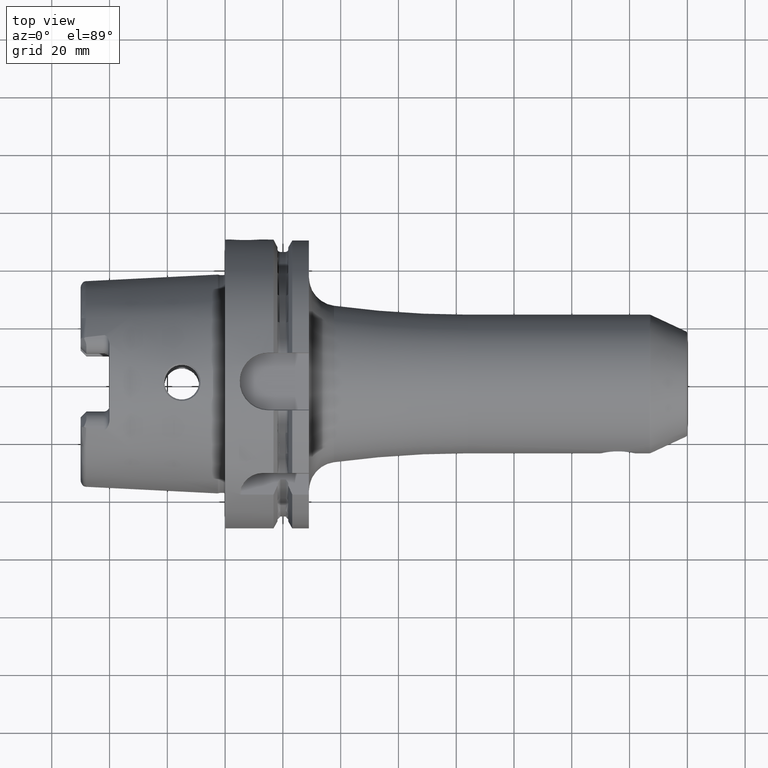
[diagram: clean part render]
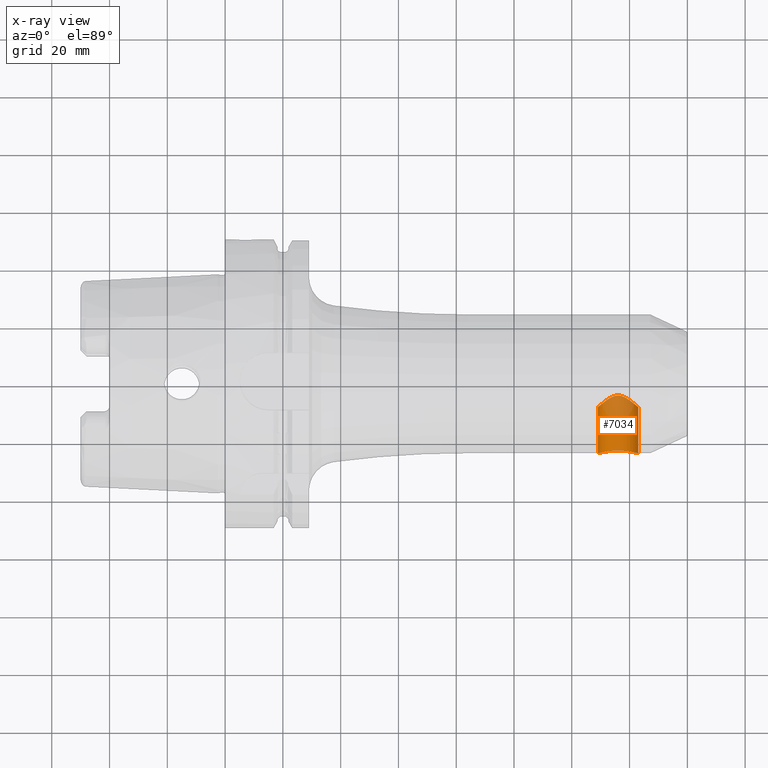
[diagram: x-ray — body ghosted, one internal face saturated and labeled with its STEP entity id]
A machine part, top view, then the same camera in x-ray: the body is ghosted and one INTERNAL B-rep face — a face not visible from any outside direction — is saturated and labeled: STEP entity #7034.
In plain terms, the highlighted cylindrical surface (edge-blend (fillet) strip) has radius 7 mm, axis along (0, -1, 0).
Its self-contained STEP definition (entity closure, byte-faithful):
#6871=CARTESIAN_POINT('',(1.43E2,-2.400001298831E1,0.E0));
#6872=CARTESIAN_POINT('',(1.43E2,-2.400001298831E1,-2.599869765732E-1));
#6873=CARTESIAN_POINT('',(1.429709704847E2,-2.399150338038E1,
-7.786805180084E-1));
#6874=CARTESIAN_POINT('',(1.428425598918E2,-2.395437764671E1,
-1.542163149351E0));
#6875=CARTESIAN_POINT('',(1.426313766120E2,-2.389468416868E1,
-2.285604773974E0));
#6876=CARTESIAN_POINT('',(1.423390125809E2,-2.381489618596E1,
-3.002926058963E0));
#6877=CARTESIAN_POINT('',(1.419666499466E2,-2.371809353725E1,
-3.688464479932E0));
#6878=CARTESIAN_POINT('',(1.415133943394E2,-2.360766084711E1,
-4.337390816795E0));
#6879=CARTESIAN_POINT('',(1.409872896573E2,-2.348987425063E1,
-4.933183700281E0));
#6880=CARTESIAN_POINT('',(1.404003070403E2,-2.337180201565E1,
-5.463069131336E0));
#6881=CARTESIAN_POINT('',(1.397558588571E2,-2.325852722453E1,
-5.924994029402E0));
#6882=CARTESIAN_POINT('',(1.390547520956E2,-2.315512490163E1,
-6.315360607712E0));
#6883=CARTESIAN_POINT('',(1.383149610578E2,-2.306886922764E1,
-6.622057041348E0));
#6884=CARTESIAN_POINT('',(1.375563729062E2,-2.300495643593E1,
-6.839774007252E0));
#6885=CARTESIAN_POINT('',(1.367840238527E2,-2.296544608447E1,
-6.970698381610E0));
#6886=CARTESIAN_POINT('',(1.359968920439E2,-2.295194482650E1,
-7.014824567475E0));
#6887=CARTESIAN_POINT('',(1.352097565688E2,-2.296565927131E1,
-6.969999207121E0));
#6888=CARTESIAN_POINT('',(1.344373993894E2,-2.300537863635E1,
-6.838360540201E0));
#6889=CARTESIAN_POINT('',(1.336788181798E2,-2.306949504708E1,
-6.619887542042E0));
#6890=CARTESIAN_POINT('',(1.329391557615E2,-2.315593202873E1,
-6.312415406880E0));
#6891=CARTESIAN_POINT('',(1.322384021162E2,-2.325945949598E1,
-5.921348969325E0));
#6892=CARTESIAN_POINT('',(1.315945822363E2,-2.337277171316E1,
-5.458928987513E0));
#6893=CARTESIAN_POINT('',(1.310085236189E2,-2.349077135300E1,
-4.928907749470E0));
#6894=CARTESIAN_POINT('',(1.304834547147E2,-2.360840380044E1,
-4.333325606971E0));
#6895=CARTESIAN_POINT('',(1.300311817806E2,-2.371864398302E1,
-3.684887927659E0));
#6896=CARTESIAN_POINT('',(1.296596097993E2,-2.381526591563E1,
-2.999940478333E0));
#6897=CARTESIAN_POINT('',(1.293678601677E2,-2.389489764801E1,
-2.283298350409E0));
#6898=CARTESIAN_POINT('',(1.291571000861E2,-2.395447549721E1,
-1.540527434929E0));
#6899=CARTESIAN_POINT('',(1.290289626740E2,-2.399152296674E1,
-7.778052895690E-1));
#6900=CARTESIAN_POINT('',(1.29E2,-2.400001302816E1,-2.596884563265E-1));
#6901=CARTESIAN_POINT('',(1.29E2,-2.400001302816E1,0.E0));
#6903=CARTESIAN_POINT('',(1.29E2,-8.E0,0.E0));
#6904=CARTESIAN_POINT('',(1.29E2,-8.E0,-2.184094531398E-1));
#6905=CARTESIAN_POINT('',(1.290204518688E2,-7.982094822043E0,
-6.576237401892E-1));
#6906=CARTESIAN_POINT('',(1.291142505857E2,-7.900149609125E0,
-1.317266431163E0));
#6907=CARTESIAN_POINT('',(1.292721181139E2,-7.762821664343E0,
-1.972817905048E0));
#6908=CARTESIAN_POINT('',(1.295007803086E2,-7.565309559681E0,
-2.631747322860E0));
#6909=CARTESIAN_POINT('',(1.298024655417E2,-7.307441909993E0,
-3.281667492921E0));
#6910=CARTESIAN_POINT('',(1.301896133774E2,-6.981526320673E0,
-3.929370397935E0));
#6911=CARTESIAN_POINT('',(1.306696372088E2,-6.586474542981E0,
-4.561109445936E0));
#6912=CARTESIAN_POINT('',(1.312327308831E2,-6.138421770942E0,
-5.147373687027E0));
#6913=CARTESIAN_POINT('',(1.318668330309E2,-5.658066838187E0,
-5.669687528174E0));
#6914=CARTESIAN_POINT('',(1.325565027710E2,-5.173935445066E0,
-6.111502264667E0));
#6915=CARTESIAN_POINT('',(1.332271491719E2,-4.753468306032E0,
-6.440251251281E0));
#6916=CARTESIAN_POINT('',(1.338545793168E2,-4.416965690208E0,
-6.673139486331E0));
#6917=CARTESIAN_POINT('',(1.344365078887E2,-4.165797158432E0,
-6.831232299866E0));
#6918=CARTESIAN_POINT('',(1.349818917272E2,-3.993522257351E0,
-6.932491323775E0));
#6919=CARTESIAN_POINT('',(1.355014215486E2,-3.894092573074E0,
-6.988385614980E0));
#6920=CARTESIAN_POINT('',(1.360004072951E2,-3.862397843197E0,
-7.005824219327E0));
#6921=CARTESIAN_POINT('',(1.364996618631E2,-3.894216289704E0,
-6.988317420113E0));
#6922=CARTESIAN_POINT('',(1.370194281257E2,-3.993859684830E0,
-6.932298547158E0));
#6923=CARTESIAN_POINT('',(1.375646381083E2,-4.166241401840E0,
-6.830962283381E0));
#6924=CARTESIAN_POINT('',(1.381461893479E2,-4.417358197984E0,
-6.672876514465E0));
#6925=CARTESIAN_POINT('',(1.387730864079E2,-4.753619491039E0,
-6.440132441773E0));
#6926=CARTESIAN_POINT('',(1.394434800633E2,-5.173925947826E0,
-6.111507443965E0));
#6927=CARTESIAN_POINT('',(1.401331194341E2,-5.658033006955E0,
-5.669718084865E0));
#6928=CARTESIAN_POINT('',(1.407671249806E2,-6.138310415518E0,
-5.147502509449E0));
#6929=CARTESIAN_POINT('',(1.413302449814E2,-6.586378552199E0,
-4.561250405129E0));
#6930=CARTESIAN_POINT('',(1.418103038043E2,-6.981457311448E0,
-3.929492900465E0));
#6931=CARTESIAN_POINT('',(1.421974609412E2,-7.307379445640E0,
-3.281807740718E0));
#6932=CARTESIAN_POINT('',(1.424991816777E2,-7.565276807724E0,
-2.631845648845E0));
#6933=CARTESIAN_POINT('',(1.427278576349E2,-7.762800635084E0,
-1.972900484561E0));
#6934=CARTESIAN_POINT('',(1.428857349392E2,-7.900136975257E0,
-1.317346551379E0));
#6935=CARTESIAN_POINT('',(1.429795461863E2,-7.982093116669E0,
-6.576598099481E-1));
#6936=CARTESIAN_POINT('',(1.43E2,-8.E0,-2.184221983148E-1));
#6937=CARTESIAN_POINT('',(1.43E2,-8.E0,0.E0));
#6971=DIRECTION('',(0.E0,1.E0,0.E0));
#6972=VECTOR('',#6971,1.600001298831E1);
#6973=CARTESIAN_POINT('',(1.43E2,-2.400001298831E1,0.E0));
#6974=LINE('',#6973,#6972);
#7011=DIRECTION('',(0.E0,1.E0,0.E0));
#7012=VECTOR('',#7011,1.600001302816E1);
#7013=CARTESIAN_POINT('',(1.29E2,-2.400001302816E1,0.E0));
#7014=LINE('',#7013,#7012);
#7015=VERTEX_POINT('',#6901);
#7016=VERTEX_POINT('',#6871);
#7017=VERTEX_POINT('',#6937);
#7018=VERTEX_POINT('',#6903);
#7019=CARTESIAN_POINT('',(1.36E2,4.985421899874E0,0.E0));
#7020=DIRECTION('',(0.E0,-1.E0,0.E0));
#7021=DIRECTION('',(-1.E0,0.E0,0.E0));
#7022=AXIS2_PLACEMENT_3D('',#7019,#7020,#7021);
#7023=CYLINDRICAL_SURFACE('',#7022,7.E0);
#7025=ORIENTED_EDGE('',*,*,#7024,.T.);
#7027=ORIENTED_EDGE('',*,*,#7026,.T.);
#7029=ORIENTED_EDGE('',*,*,#7028,.T.);
#7031=ORIENTED_EDGE('',*,*,#7030,.F.);
#7032=EDGE_LOOP('',(#7025,#7027,#7029,#7031));
#7033=FACE_OUTER_BOUND('',#7032,.F.);
#7034=ADVANCED_FACE('',(#7033),#7023,.F.);
#6902=B_SPLINE_CURVE_WITH_KNOTS('',3,(#6871,#6872,#6873,#6874,#6875,#6876,#6877,
#6878,#6879,#6880,#6881,#6882,#6883,#6884,#6885,#6886,#6887,#6888,#6889,#6890,
#6891,#6892,#6893,#6894,#6895,#6896,#6897,#6898,#6899,#6900,#6901),
.UNSPECIFIED.,.F.,.F.,(4,1,1,1,1,1,1,1,1,1,1,1,1,1,1,1,1,1,1,1,1,1,1,1,1,1,1,1,
4),(0.E0,3.571428571429E-2,7.142857142857E-2,1.071428571429E-1,
1.428571428571E-1,1.785714285714E-1,2.142857142857E-1,2.5E-1,2.857142857143E-1,
3.214285714286E-1,3.571428571429E-1,3.928571428571E-1,4.285714285714E-1,
4.642857142857E-1,5.E-1,5.357142857143E-1,5.714285714286E-1,6.071428571429E-1,
6.428571428571E-1,6.785714285714E-1,7.142857142857E-1,7.5E-1,7.857142857143E-1,
8.214285714286E-1,8.571428571429E-1,8.928571428571E-1,9.285714285714E-1,
9.642857142857E-1,1.E0),.UNSPECIFIED.);
#6938=B_SPLINE_CURVE_WITH_KNOTS('',3,(#6903,#6904,#6905,#6906,#6907,#6908,#6909,
#6910,#6911,#6912,#6913,#6914,#6915,#6916,#6917,#6918,#6919,#6920,#6921,#6922,
#6923,#6924,#6925,#6926,#6927,#6928,#6929,#6930,#6931,#6932,#6933,#6934,#6935,
#6936,#6937),.UNSPECIFIED.,.F.,.F.,(4,1,1,1,1,1,1,1,1,1,1,1,1,1,1,1,1,1,1,1,1,1,
1,1,1,1,1,1,1,1,1,1,4),(0.E0,3.125E-2,6.25E-2,9.375E-2,1.25E-1,1.5625E-1,
1.875E-1,2.1875E-1,2.5E-1,2.8125E-1,3.125E-1,3.4375E-1,3.75E-1,4.0625E-1,
4.375E-1,4.6875E-1,5.E-1,5.3125E-1,5.625E-1,5.9375E-1,6.25E-1,6.5625E-1,
6.875E-1,7.1875E-1,7.5E-1,7.8125E-1,8.125E-1,8.4375E-1,8.75E-1,9.0625E-1,
9.375E-1,9.6875E-1,1.E0),.UNSPECIFIED.);
#7024=EDGE_CURVE('',#7016,#7015,#6902,.T.);
#7026=EDGE_CURVE('',#7015,#7018,#7014,.T.);
#7028=EDGE_CURVE('',#7018,#7017,#6938,.T.);
#7030=EDGE_CURVE('',#7016,#7017,#6974,.T.);